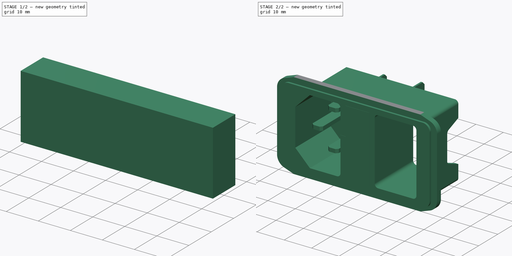
[diagram: build sequence overview — one tinted view per stage of 2, left to right]
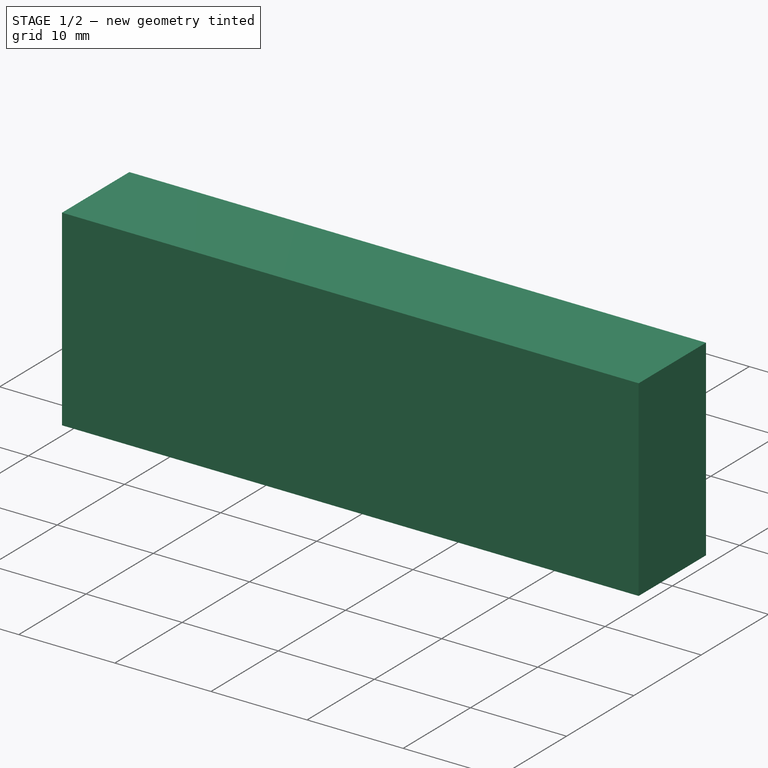
[diagram: stage 1 of 2 — iso view after this stage's code; geometry added in this stage tinted green]
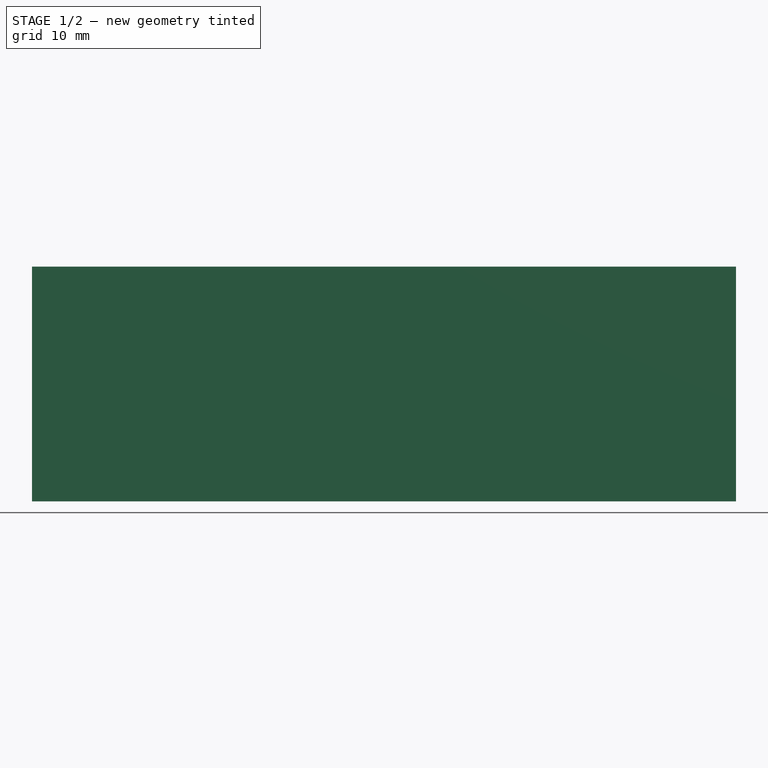
[diagram: stage 1 of 2 — front view after this stage's code; geometry added in this stage tinted green]
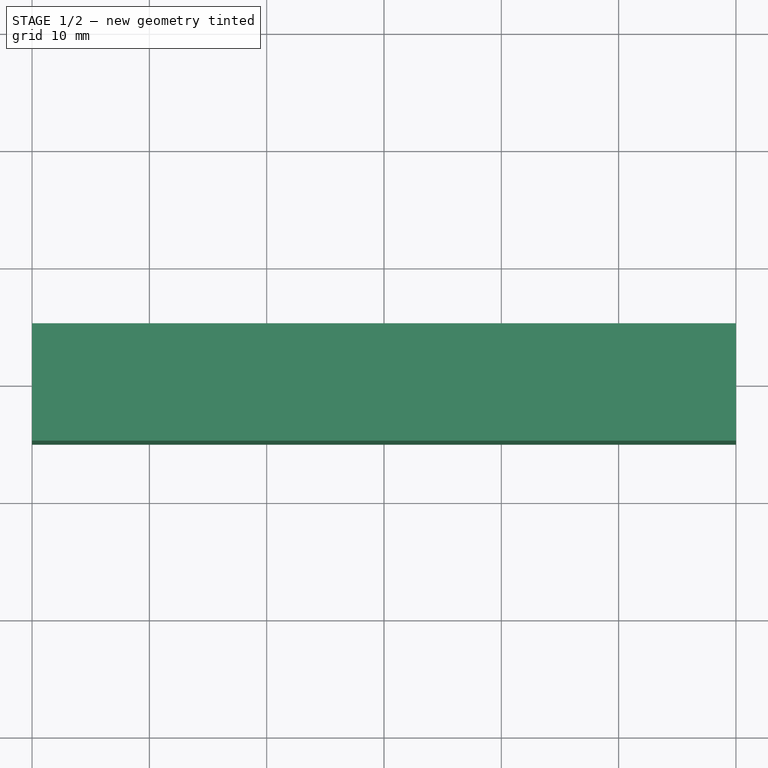
[diagram: stage 1 of 2 — top view after this stage's code; geometry added in this stage tinted green]
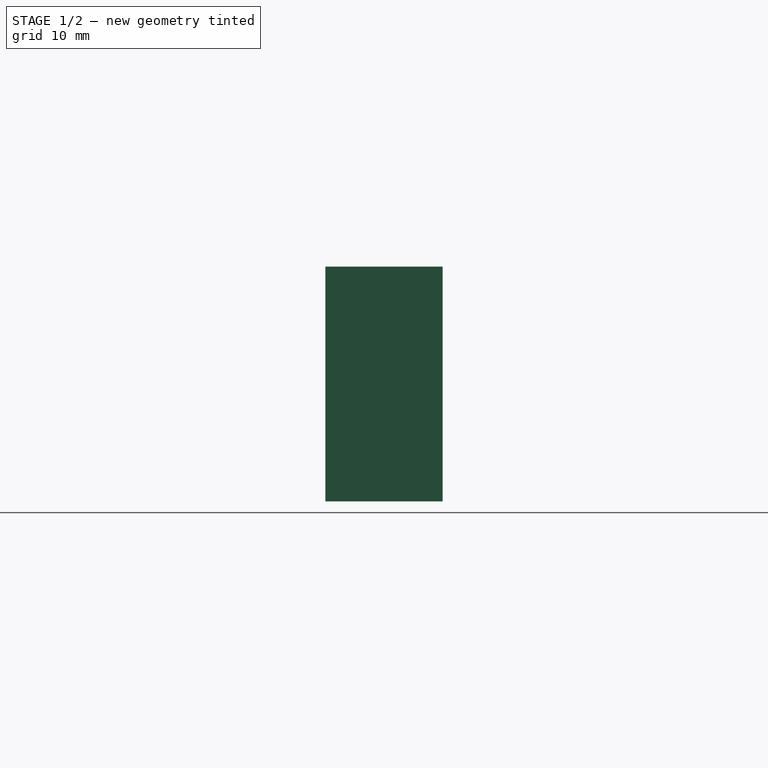
[diagram: stage 1 of 2 — right view after this stage's code; geometry added in this stage tinted green]
FCSTD DOCUMENT  (FreeCAD 1.1R40971 (Git))
Label: switched_fused_inlet
License: All rights reserved
LicenseURL: https://en.wikipedia.org/wiki/All_rights_reserved
objects: App::Point×4, Part::Feature×2, Sketcher::SketchObject×2, PartDesign::Pad×2, PartDesign::Body×2, Part::Cut×2, App::Part×2
note: 16 computed .brp shape members not serialized (recipe doc carries the construction recipe); baked Part::Feature solids carry a one-line shape summary decoded from their .brp

FEATURE [App::Point] Origin005
  Role = Origin
FEATURE [App::Point] Origin007
  Role = Origin
FEATURE [Part::Feature] Part__Feature003  label="Switch"
  shape: bbox 15.24 x 28.21 x 24.13 mm, 86 faces (baked)
FEATURE [Part::Feature] Part__Feature002  label="Body001"
  shape: bbox 58.42 x 29.77 x 47.73 mm, 154 faces (baked)
FEATURE [App::Point] Origin011
  Role = Origin
FEATURE [Sketcher::SketchObject] Sketch001
  ArcFitTolerance = 1e-06
  AttachmentSupport = -> [XZ_Plane005]
  ExternalTypes = [0]
  FullyConstrained = true
  MakeInternals = false
  MapMode = 5
  Placement = pos=(0,0,0) rot=(1,0,0;1.5708rad)
  sketch-geometry (4):
    g0: LineSegment StartX=-30 StartY=36 StartZ=0 EndX=-30 EndY=16 EndZ=0
    g1: LineSegment StartX=-30 StartY=16 StartZ=0 EndX=30 EndY=16 EndZ=0
    g2: LineSegment StartX=30 StartY=16 StartZ=0 EndX=30 EndY=36 EndZ=0
    g3: LineSegment StartX=30 StartY=36 StartZ=0 EndX=-30 EndY=36 EndZ=0
  constraints (11):
    c: Coincident(g0,g1)
    c: Coincident(g1,g2)
    c: Coincident(g2,g3)
    c: Coincident(g3,g0)
    c: Vertical(g0)
    c: Vertical(g2)
    c: Horizontal(g1)
    c: Symmetric(g0,g2,g-2)
    c: DistanceX(g3,g3) = 60
    c: DistanceY(g0,g0) = 20
    c: Distance(g-1,g1) = 16
FEATURE [PartDesign::Pad] Pad001
  Direction = (0,-1,2e-16)
  Length = 10
  Length2 = 10
  Midplane = true
  Placement = pos=(0,0,0) rot=(1,0,0;1.5708rad)
  Profile = -> Sketch001
  ReferenceAxis = -> Sketch001 [N_Axis]
  Refine = true
  Suppressed = false
  Type = 0
FEATURE [Sketcher::SketchObject] Sketch
  ArcFitTolerance = 1e-06
  AttachmentSupport = -> [XZ_Plane004]
  ExternalTypes = [0]
  FullyConstrained = true
  MakeInternals = false
  MapMode = 5
  Placement = pos=(0,0,0) rot=(1,0,0;1.5708rad)
  sketch-geometry (4):
    g0: LineSegment StartX=-30 StartY=36 StartZ=0 EndX=-30 EndY=16 EndZ=0
    g1: LineSegment StartX=-30 StartY=16 StartZ=0 EndX=30 EndY=16 EndZ=0
    g2: LineSegment StartX=30 StartY=16 StartZ=0 EndX=30 EndY=36 EndZ=0
    g3: LineSegment StartX=30 StartY=36 StartZ=0 EndX=-30 EndY=36 EndZ=0
  constraints (11):
    c: Coincident(g0,g1)
    c: Coincident(g1,g2)
    c: Coincident(g2,g3)
    c: Coincident(g3,g0)
    c: Vertical(g0)
    c: Vertical(g2)
    c: Horizontal(g1)
    c: Symmetric(g0,g2,g-2)
    c: DistanceX(g3,g3) = 60
    c: DistanceY(g0,g0) = 20
    c: Distance(g-1,g1) = 16
FEATURE [PartDesign::Pad] Pad
  Direction = (0,-1,2e-16)
  Length = 10
  Length2 = 10
  Midplane = true
  Placement = pos=(0,0,0) rot=(1,0,0;1.5708rad)
  Profile = -> Sketch
  ReferenceAxis = -> Sketch [N_Axis]
  Refine = true
  Suppressed = false
  Type = 0
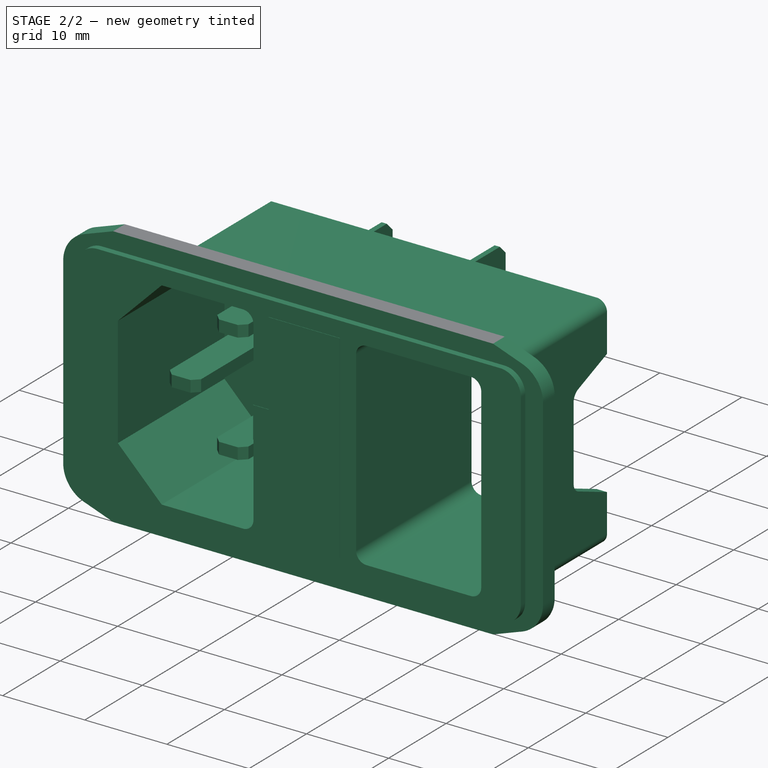
[diagram: stage 2 of 2 — iso view after this stage's code; geometry added in this stage tinted green]
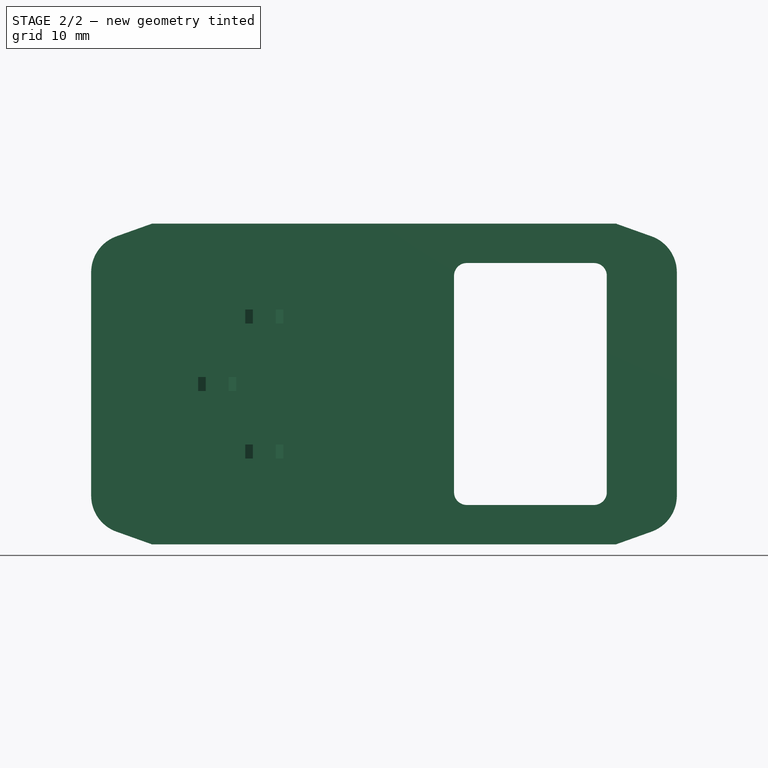
[diagram: stage 2 of 2 — front view after this stage's code; geometry added in this stage tinted green]
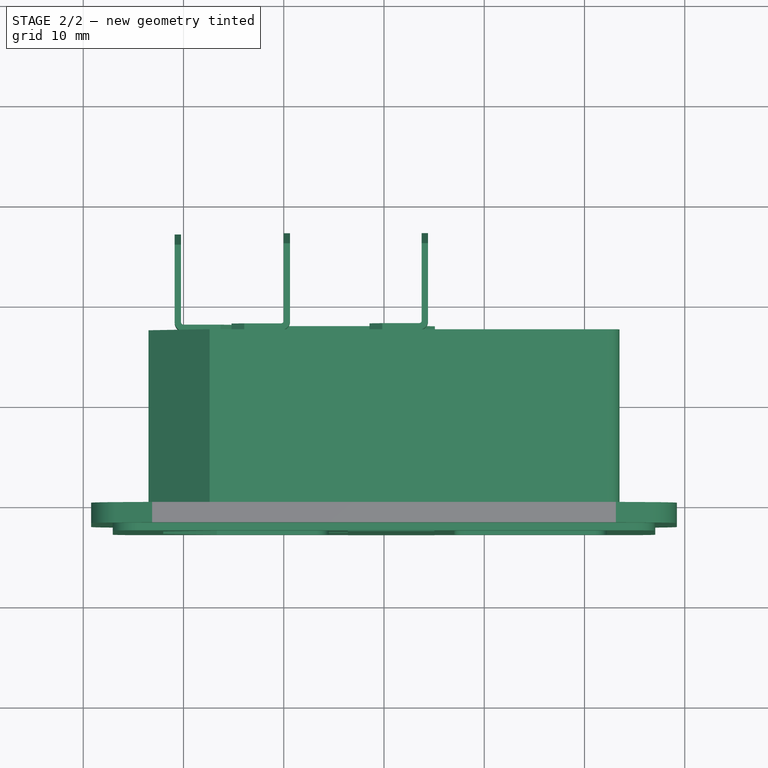
[diagram: stage 2 of 2 — top view after this stage's code; geometry added in this stage tinted green]
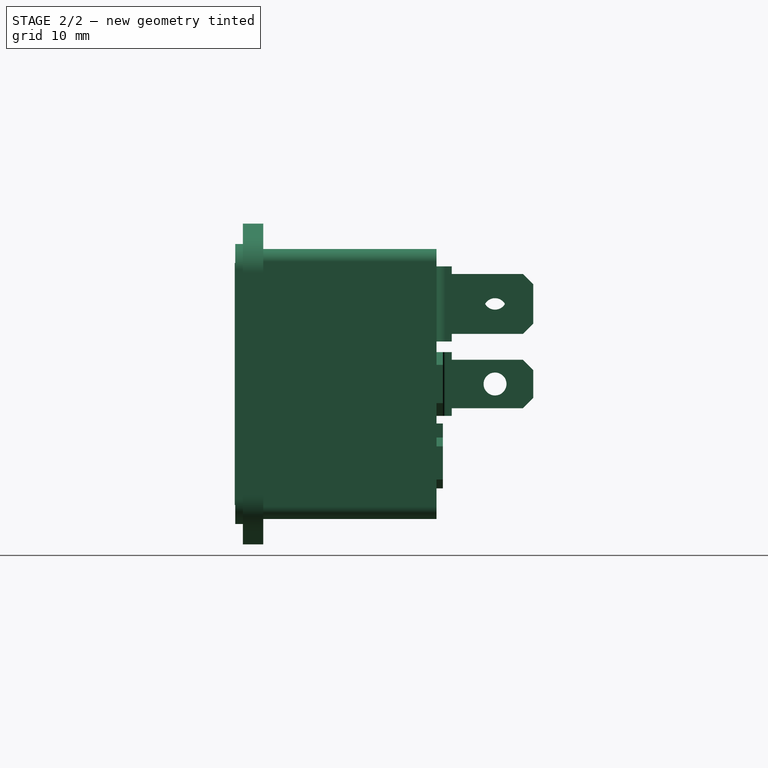
[diagram: stage 2 of 2 — right view after this stage's code; geometry added in this stage tinted green]
FEATURE [PartDesign::Body] Body001  label="cut right"
  AllowCompound = false
  Group = -> [Sketch001,Pad001]
  Origin = -> Origin010
  Placement = pos=(0,0,0) rot=(0,1,0;3.14159rad)
  Tip = -> Pad001
FEATURE [Part::Cut] Cut
  Base = -> Part__Feature002
  Refine = true
  Tool = -> Body001
FEATURE [App::Point] Origin009
  Role = Origin
FEATURE [PartDesign::Body] Body  label="cut left"
  AllowCompound = false
  Group = -> [Sketch,Pad]
  Origin = -> Origin008
  Tip = -> Pad
FEATURE [Part::Cut] Cut001  label="Main Body remove wings"
  Base = -> Cut
  Refine = true
  Tool = -> Body
FEATURE [App::Part] AC_Inlet_Assembly001  label="AC_Inlet_Assembly"
  Group = -> [Part__Feature003,Body001,Part__Feature002,Body,Cut,Cut001]
  Origin = -> Origin004
  Placement = pos=(0,0,0) rot=(0,-1,0;1.5708rad)
FEATURE [App::Part] Part001  label="Switched Inlet"
  Group = -> [AC_Inlet_Assembly001]
  Origin = -> Origin006
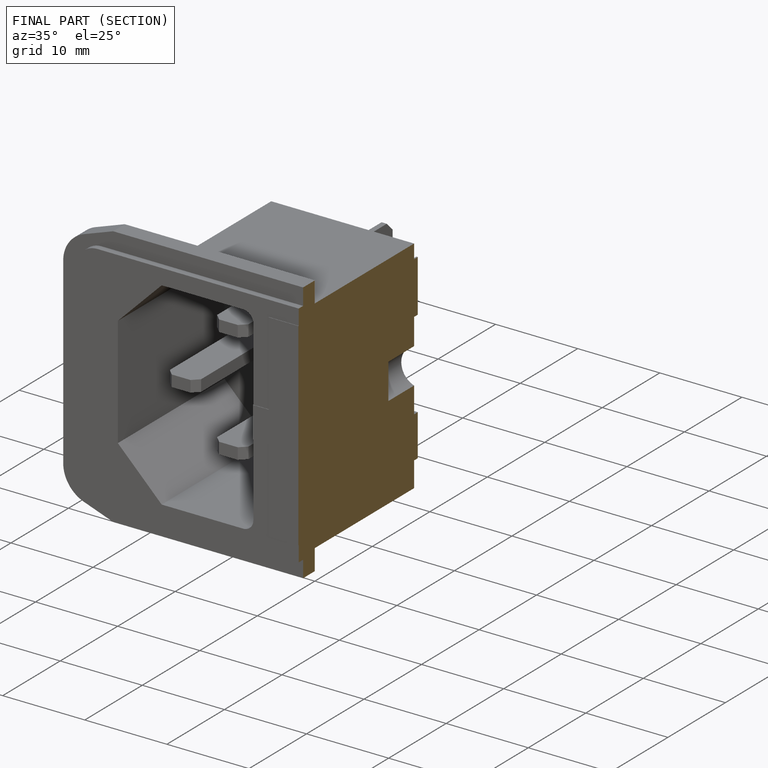
[diagram: finished part — half-section view (interior)]
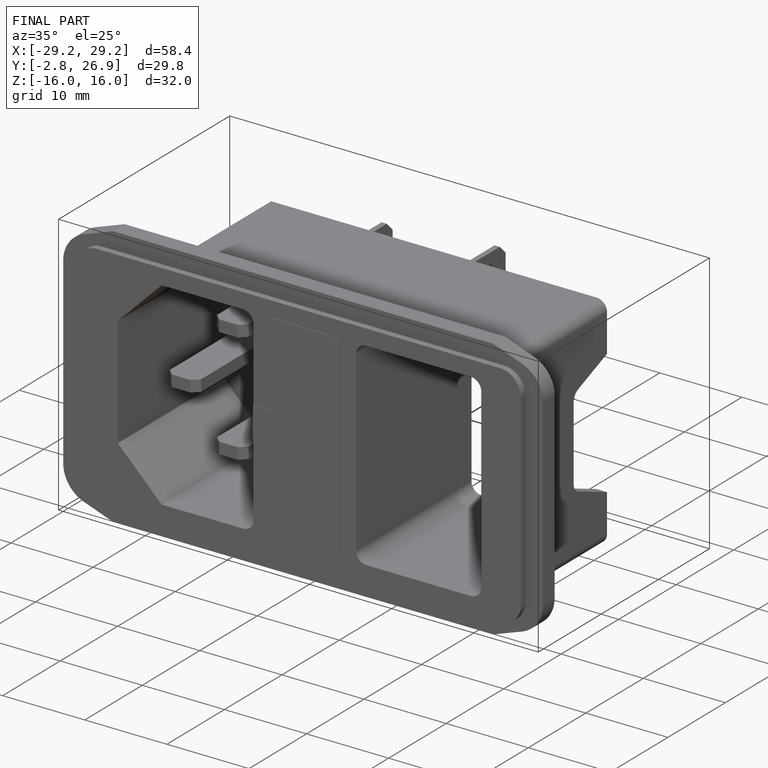
[diagram: finished part — iso view with bounding-box wireframe]
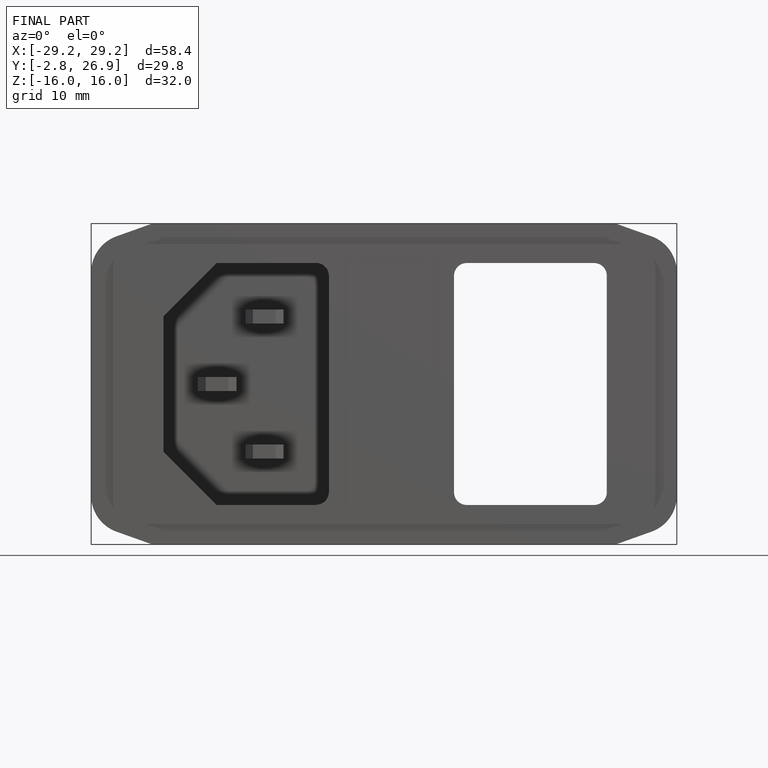
[diagram: finished part — front view with bounding-box wireframe]
